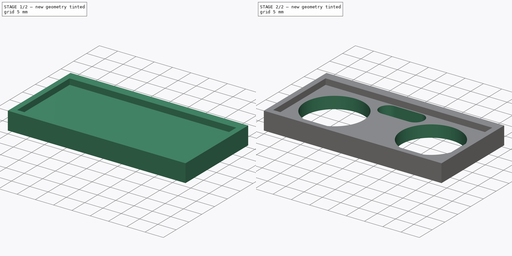
[diagram: build sequence overview — one tinted view per stage of 2, left to right]
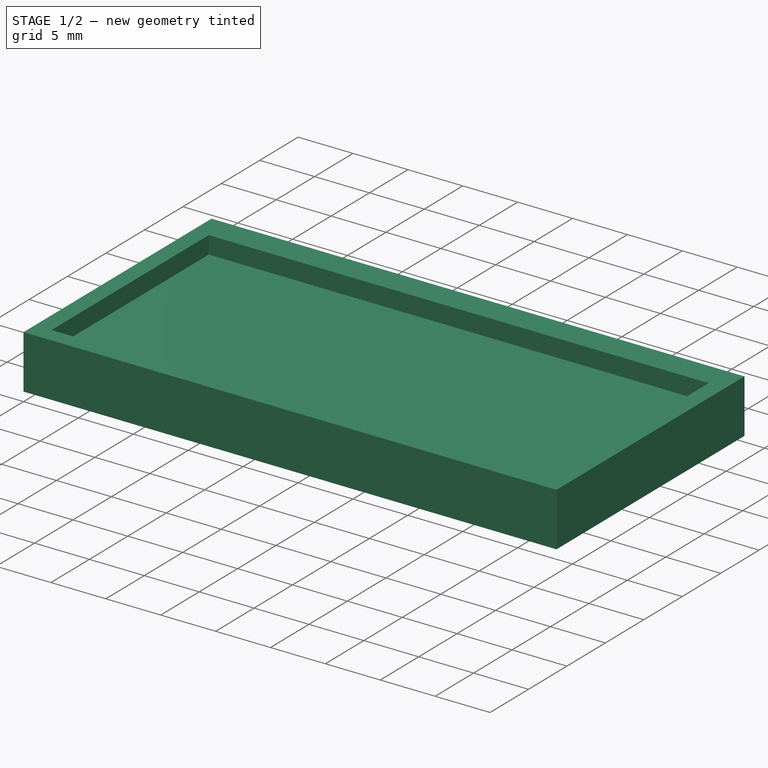
[diagram: stage 1 of 2 — iso view after this stage's code; geometry added in this stage tinted green]
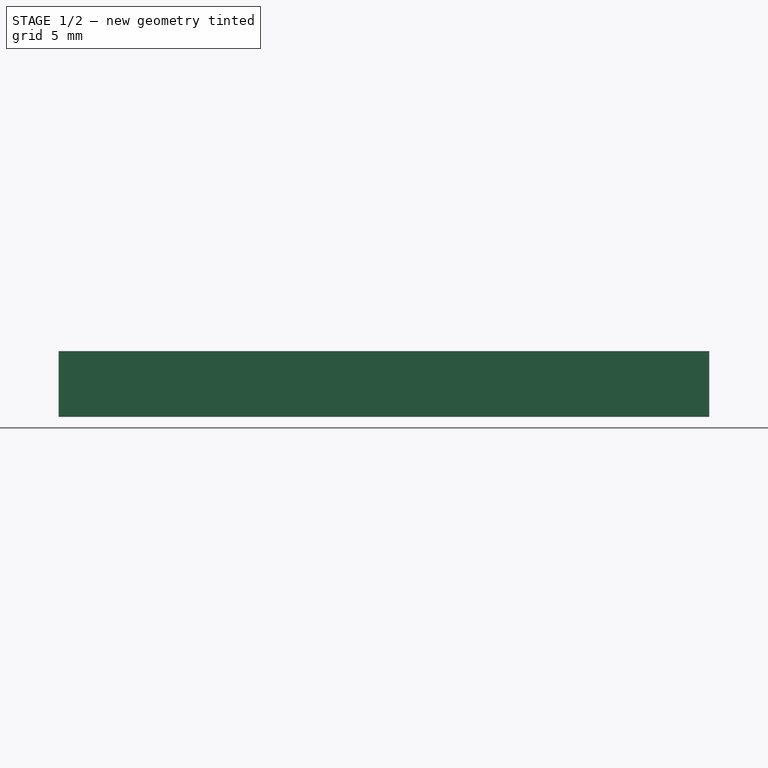
[diagram: stage 1 of 2 — front view after this stage's code; geometry added in this stage tinted green]
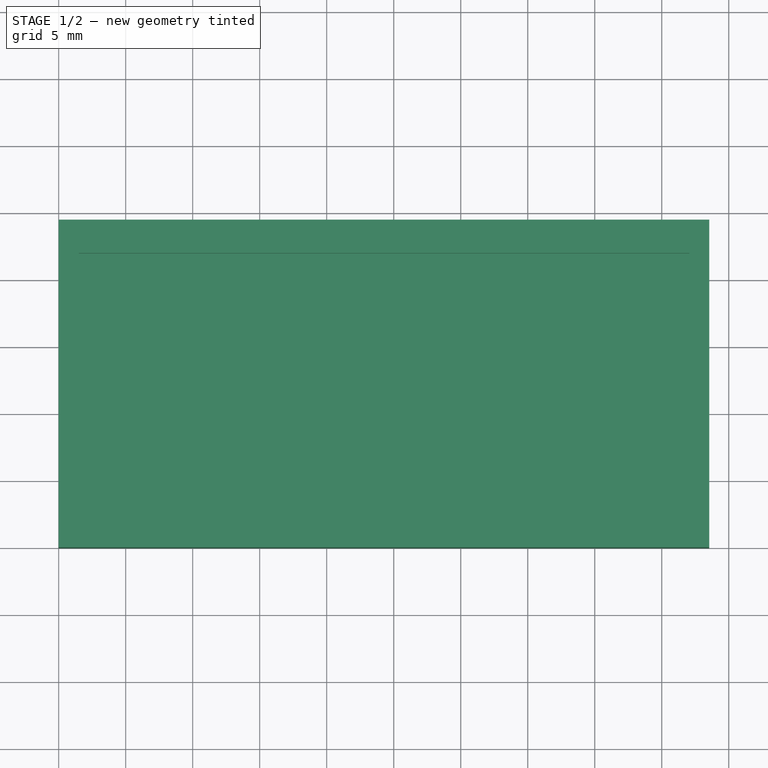
[diagram: stage 1 of 2 — top view after this stage's code; geometry added in this stage tinted green]
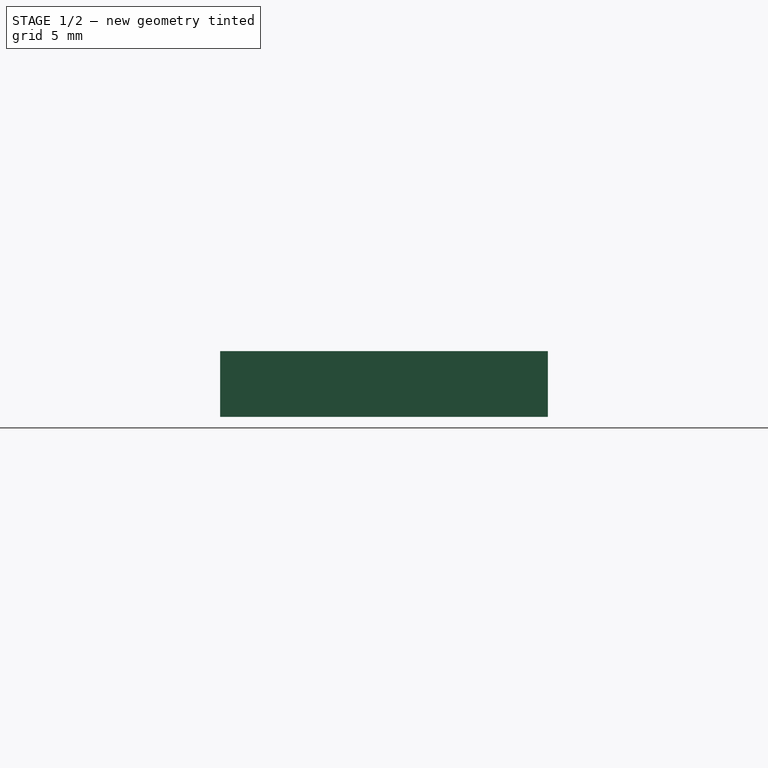
[diagram: stage 1 of 2 — right view after this stage's code; geometry added in this stage tinted green]
FCSTD DOCUMENT  (FreeCAD 0.16R6706 (Git))
Label: HC-SR04-base
License: All rights reserved
LicenseURL: http://en.wikipedia.org/wiki/All_rights_reserved
objects: Sketcher::SketchObject×4, PartDesign::Pocket×3, PartDesign::Pad×1
note: 12 computed .brp shape members not serialized (recipe doc carries the construction recipe); baked Part::Feature solids carry a one-line shape summary decoded from their .brp

FEATURE [Sketcher::SketchObject] Sketch
  sketch-geometry (4):
    g0: LineSegment StartX=0 StartY=0 StartZ=0 EndX=48.55 EndY=0 EndZ=0
    g1: LineSegment StartX=48.55 StartY=0 StartZ=0 EndX=48.55 EndY=24.45 EndZ=0
    g2: LineSegment StartX=48.55 StartY=24.45 StartZ=0 EndX=0 EndY=24.45 EndZ=0
    g3: LineSegment StartX=0 StartY=24.45 StartZ=0 EndX=0 EndY=0 EndZ=0
  constraints (11):
    c: Coincident(g0,g1)
    c: Coincident(g1,g2)
    c: Coincident(g2,g3)
    c: Coincident(g3,g0)
    c: Horizontal(g0)
    c: Horizontal(g2)
    c: Vertical(g1)
    c: Vertical(g3)
    c: Coincident(g0,g-1)
    c: DistanceY(g3,g3) = 24.45
    c: DistanceX(g2,g2) = 48.55
FEATURE [PartDesign::Pad] Pad
  Length = 4.9
  Length2 = 100
  Sketch = -> Sketch
  Type = 0
FEATURE [Sketcher::SketchObject] Sketch001
  Placement = pos=(0,0,4.9) rot=(0,0,1;0rad)
  Support = -> Pad [Face6]
  sketch-geometry (4):
    g0: LineSegment StartX=1.5 StartY=21.95 StartZ=0 EndX=47.05 EndY=21.95 EndZ=0
    g1: LineSegment StartX=47.05 StartY=21.95 StartZ=0 EndX=47.05 EndY=1.5 EndZ=0
    g2: LineSegment StartX=47.05 StartY=1.5 StartZ=0 EndX=1.5 EndY=1.5 EndZ=0
    g3: LineSegment StartX=1.5 StartY=1.5 StartZ=0 EndX=1.5 EndY=21.95 EndZ=0
  constraints (12):
    c: Coincident(g0,g1)
    c: Coincident(g1,g2)
    c: Coincident(g2,g3)
    c: Coincident(g3,g0)
    c: Horizontal(g0)
    c: Horizontal(g2)
    c: Vertical(g1)
    c: Vertical(g3)
    c: DistanceY(g-1,g2) = 1.5
    c: DistanceY(g3,g3) = 20.45
    c: DistanceX(g-2,g2) = 1.5
    c: DistanceX(g0,g0) = 45.55
FEATURE [PartDesign::Pocket] Pocket
  Length = 1.6
  Sketch = -> Sketch001
  Type = 0
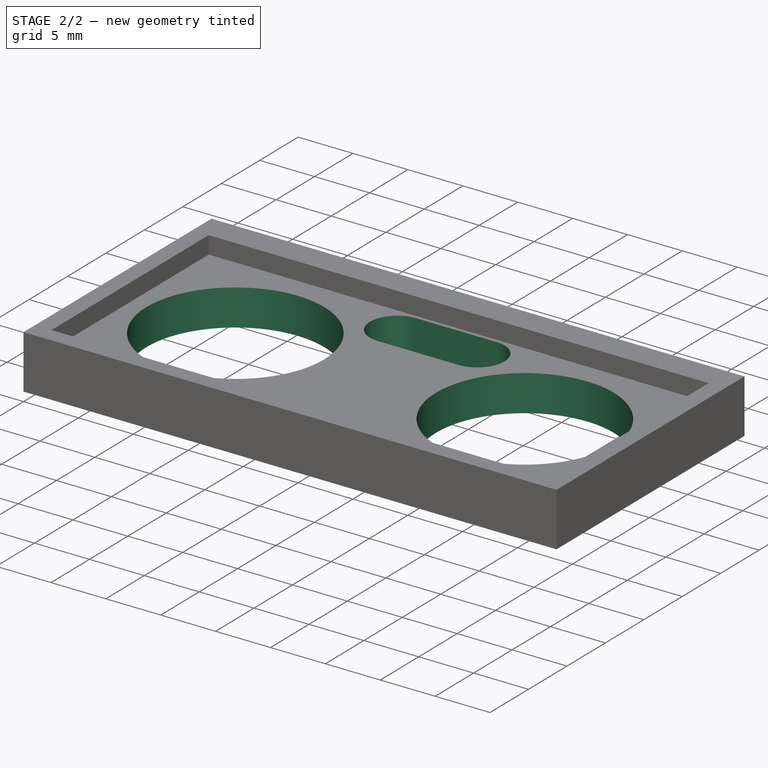
[diagram: stage 2 of 2 — iso view after this stage's code; geometry added in this stage tinted green]
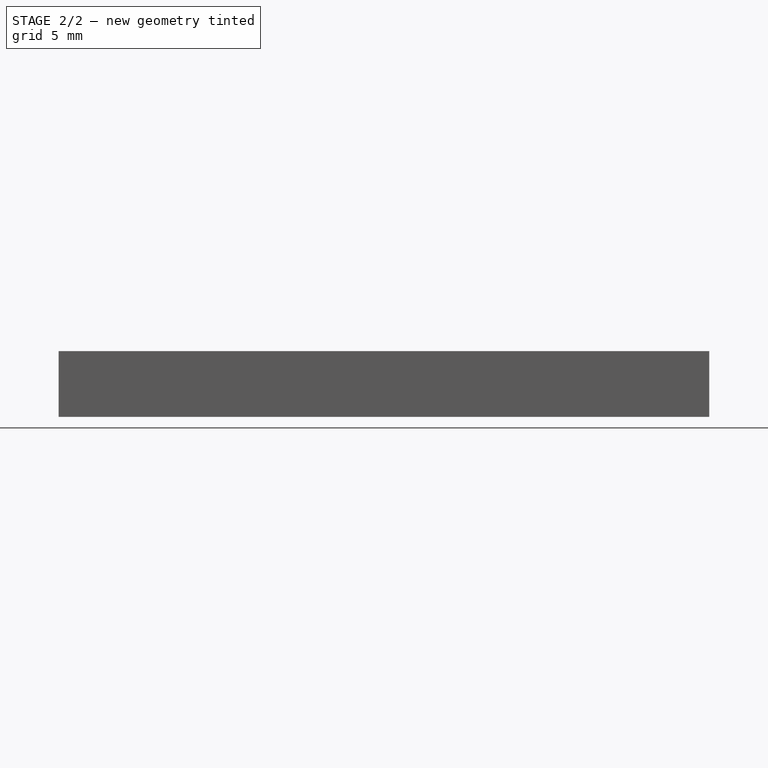
[diagram: stage 2 of 2 — front view after this stage's code; geometry added in this stage tinted green]
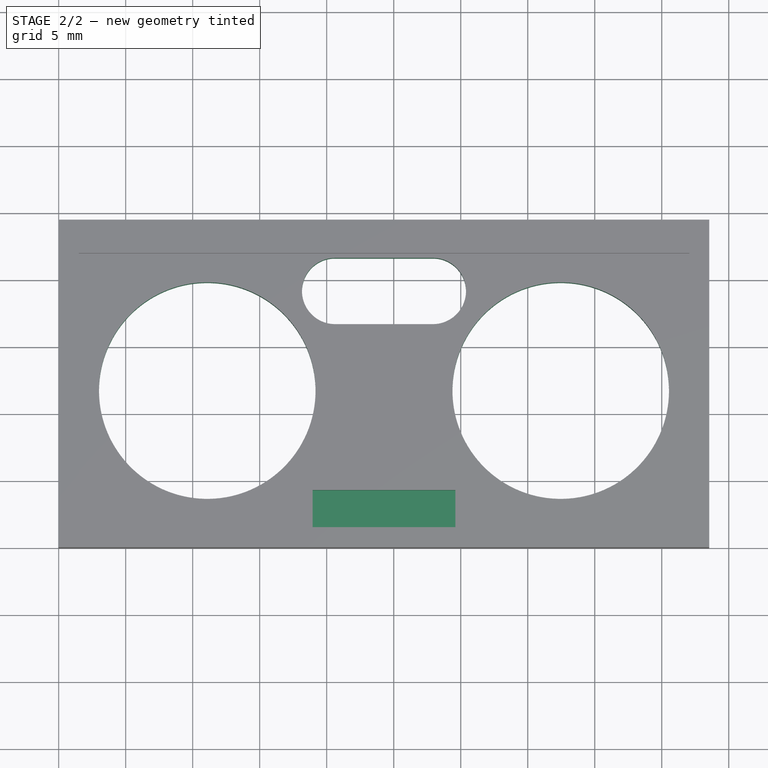
[diagram: stage 2 of 2 — top view after this stage's code; geometry added in this stage tinted green]
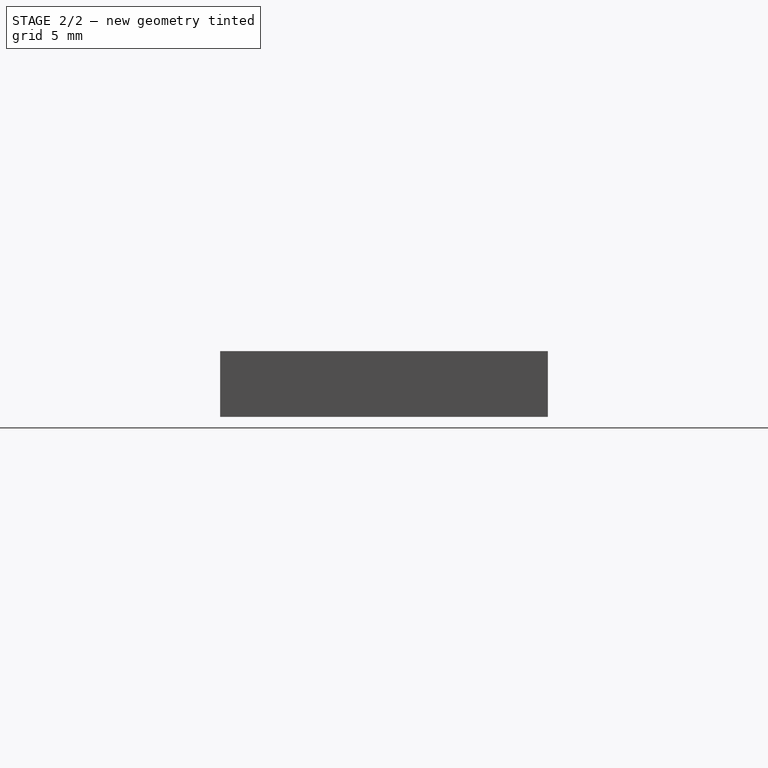
[diagram: stage 2 of 2 — right view after this stage's code; geometry added in this stage tinted green]
FEATURE [Sketcher::SketchObject] Sketch002
  Placement = pos=(0,0,3.3) rot=(0,0,1;0rad)
  Support = -> Pocket [Face11]
  sketch-geometry (8):
    g0: Circle CenterX=11.0875 CenterY=11.7175 CenterZ=0 NormalX=0 NormalY=0 NormalZ=1 Radius=8.08
    g1: Circle CenterX=37.4625 CenterY=11.7175 CenterZ=0 NormalX=0 NormalY=0 NormalZ=1 Radius=8.08
    g2: LineSegment [constr] StartX=11.0875 StartY=11.7175 StartZ=0 EndX=37.4625 EndY=11.7175 EndZ=0
    g3: LineSegment StartX=20.625 StartY=21.62 StartZ=0 EndX=27.925 EndY=21.62 EndZ=0
    g4: LineSegment StartX=20.625 StartY=16.68 StartZ=0 EndX=27.925 EndY=16.68 EndZ=0
    g5: ArcOfCircle CenterX=27.925 CenterY=19.15 CenterZ=0 NormalX=0 NormalY=0 NormalZ=1 Radius=2.47 StartAngle=4.71239 EndAngle=7.85399
    g6: ArcOfCircle CenterX=20.625 CenterY=19.15 CenterZ=0 NormalX=0 NormalY=0 NormalZ=1 Radius=2.47 StartAngle=1.5708 EndAngle=4.7124
    g7: LineSegment [constr] StartX=20.625 StartY=19.15 StartZ=0 EndX=27.925 EndY=19.15 EndZ=0
  constraints (24):
    c: Coincident(g2,g0)
    c: Coincident(g2,g1)
    c: Horizontal(g2)
    c: Radius(g0) = 8.08
    c: Radius(g1) = 8.08
    c: Distance(g0,g1) = 26.375
    c: DistanceX(g-2,g0) = 11.0875
    c: DistanceY(g-1,g0) = 11.7175
    c: Horizontal(g3)
    c: Horizontal(g4)
    c: Equal(g3,g4)
    c: DistanceX(g3,g3) = 7.3
    c: DistanceY(g4,g3) = 4.94
    c: Coincident(g5,g3)
    c: Coincident(g5,g4)
    c: Coincident(g6,g3)
    c: Coincident(g6,g4)
    c: Coincident(g7,g6)
    c: Coincident(g7,g5)
    c: Horizontal(g7)
    c: DistanceX(g-2,g4) = 20.625
    c: DistanceY(g-1,g5) = 19.15
    c: Radius(g5) = 2.47
    c: Distance(g6,g3) = 2.47
FEATURE [PartDesign::Pocket] Pocket001
  Length = 3.3
  Sketch = -> Sketch002
  Type = 0
FEATURE [Sketcher::SketchObject] Sketch003
  Placement = pos=(0,0,3.3) rot=(0,0,1;0rad)
  Support = -> Pocket001 [Face17]
  sketch-geometry (4):
    g0: LineSegment StartX=18.95 StartY=4.3 StartZ=0 EndX=29.6 EndY=4.3 EndZ=0
    g1: LineSegment StartX=29.6 StartY=4.3 StartZ=0 EndX=29.6 EndY=1.5 EndZ=0
    g2: LineSegment StartX=29.6 StartY=1.5 StartZ=0 EndX=18.95 EndY=1.5 EndZ=0
    g3: LineSegment StartX=18.95 StartY=1.5 StartZ=0 EndX=18.95 EndY=4.3 EndZ=0
  constraints (12):
    c: Coincident(g0,g1)
    c: Coincident(g1,g2)
    c: Coincident(g2,g3)
    c: Coincident(g3,g0)
    c: Horizontal(g0)
    c: Horizontal(g2)
    c: Vertical(g1)
    c: Vertical(g3)
    c: DistanceY(g1,g1) = 2.8
    c: DistanceX(g2,g2) = 10.65
    c: DistanceY(g-1,g2) = 1.5
    c: DistanceX(g-2,g2) = 18.95
FEATURE [PartDesign::Pocket] Pocket002
  Length = 1.6
  Sketch = -> Sketch003
  Type = 0
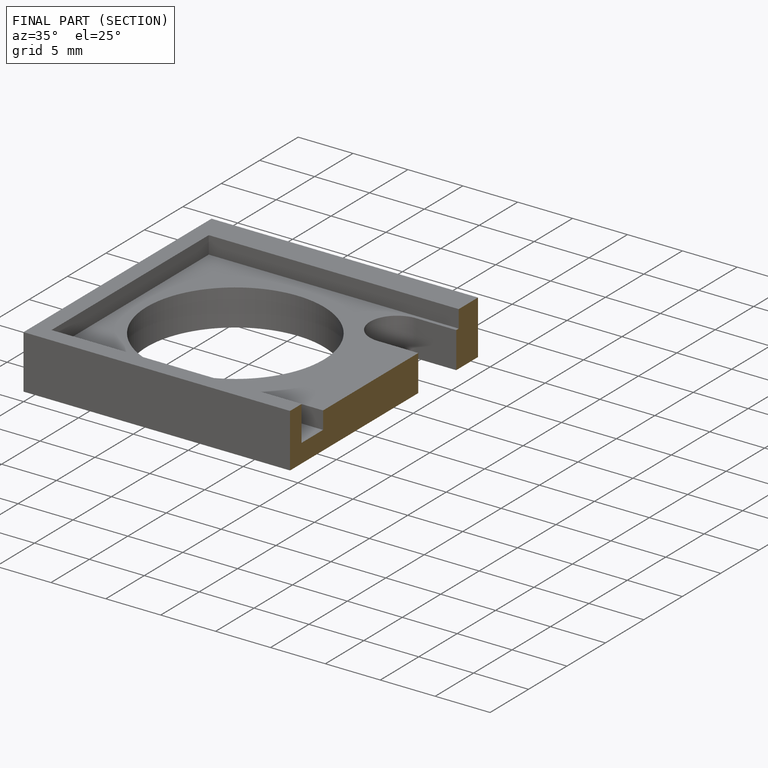
[diagram: finished part — half-section view (interior)]
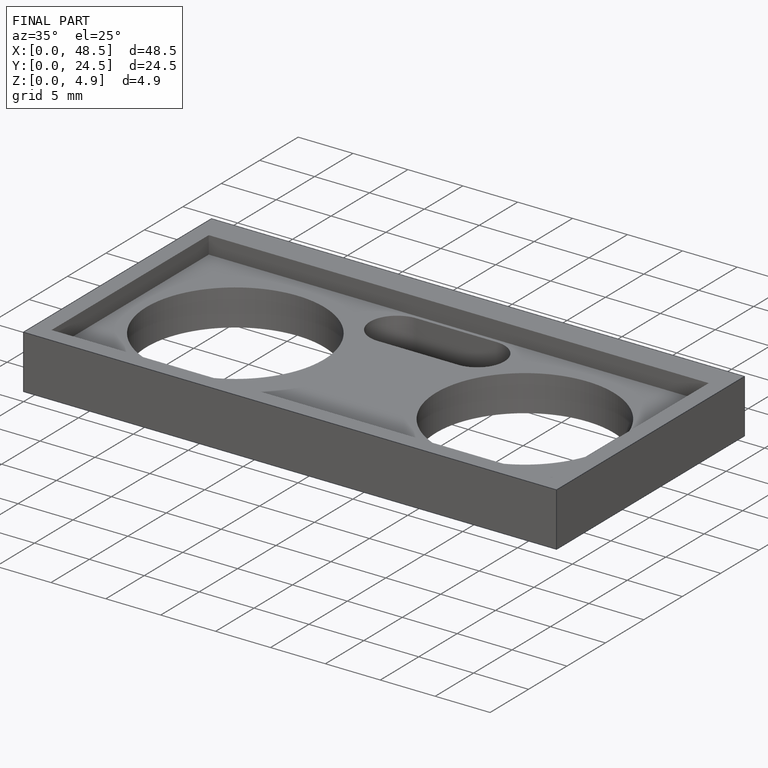
[diagram: finished part — iso view with bounding-box wireframe]
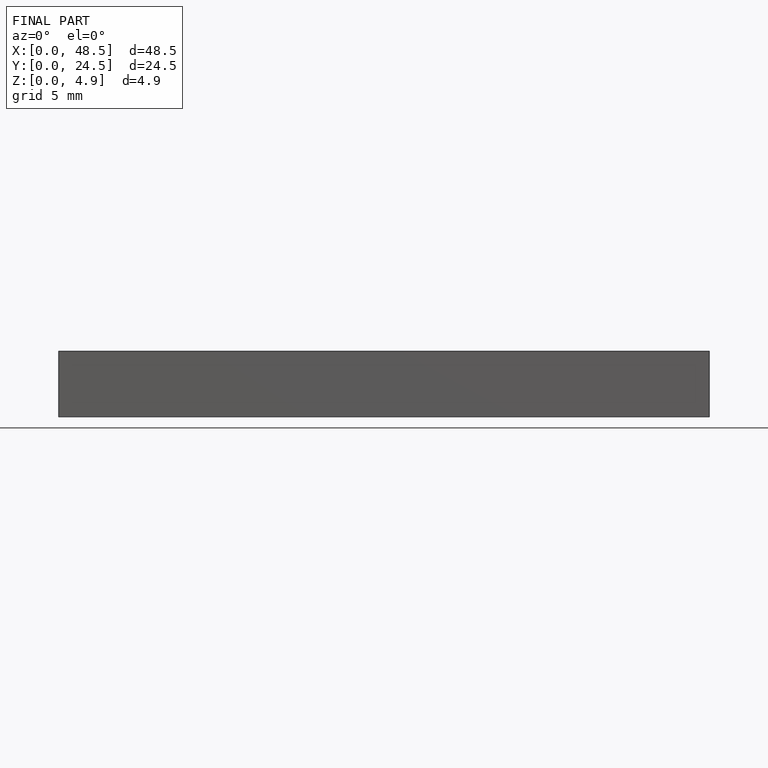
[diagram: finished part — front view with bounding-box wireframe]
